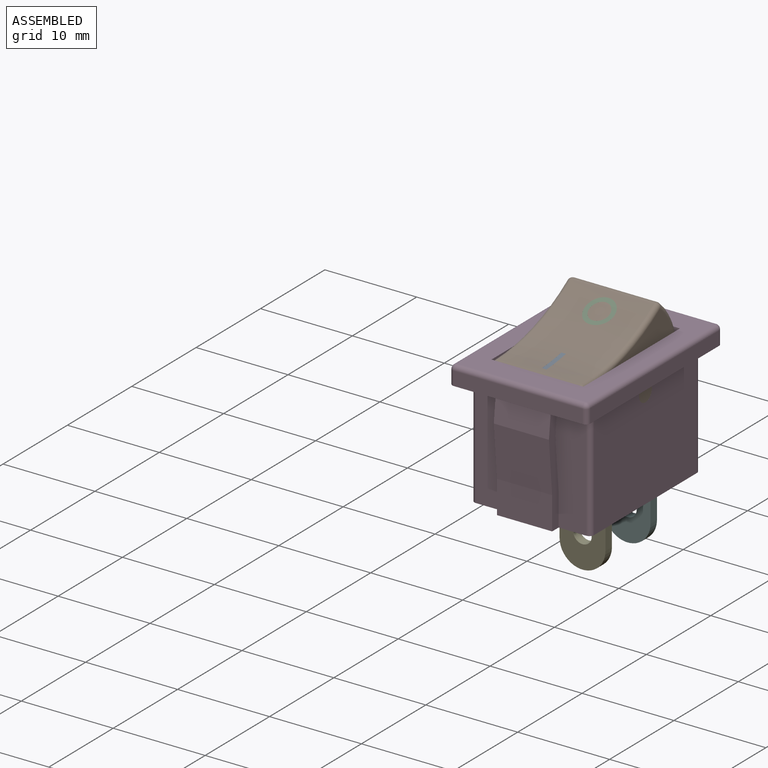
[diagram: assembled view]
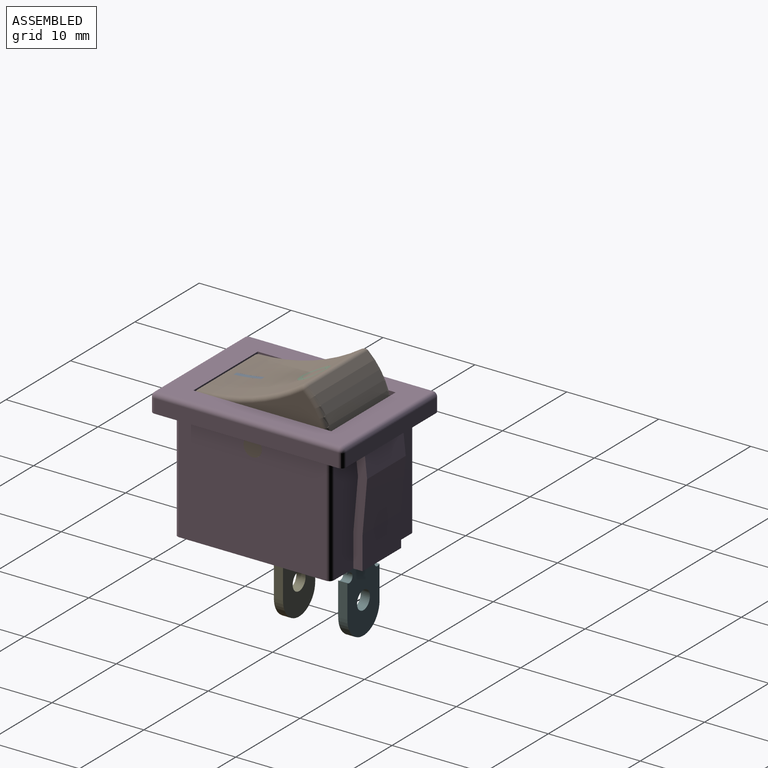
[diagram: assembled view, second angle]
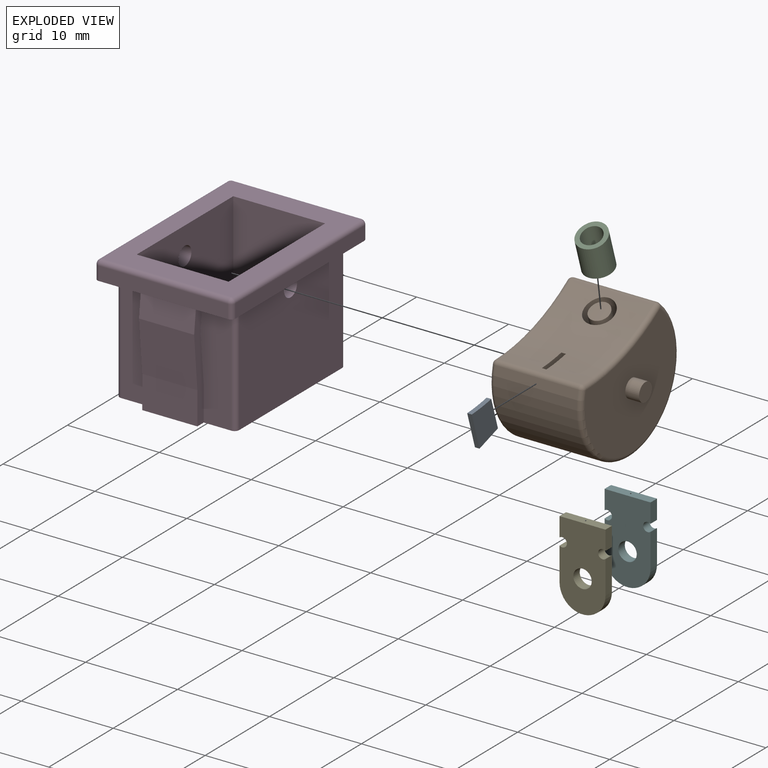
[diagram: exploded view]
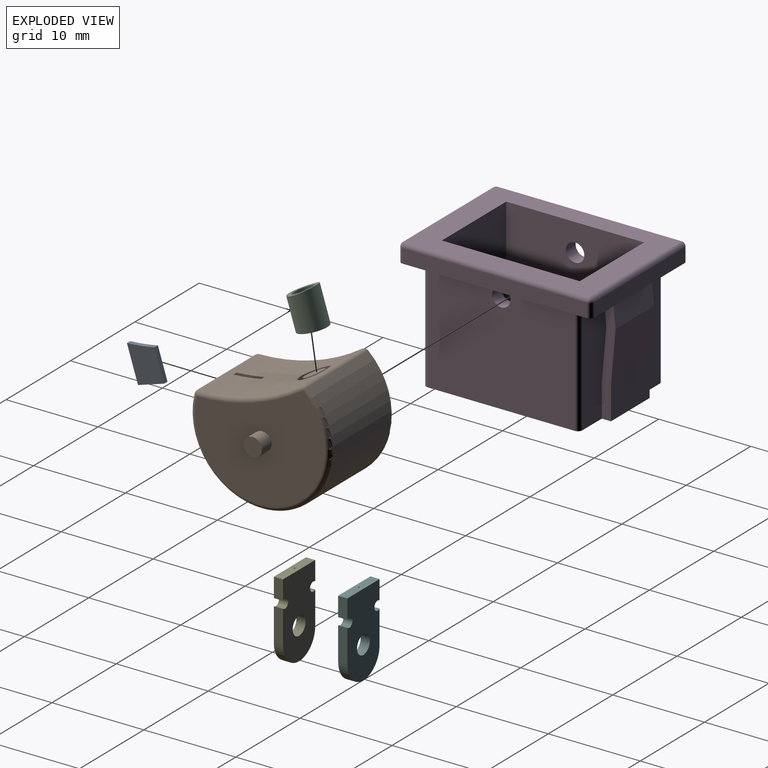
[diagram: exploded view, second angle]
ASSEMBLY  parts=6 mates=5
PART A: 6 faces, bbox 0.5x3x4 mm
  f0: plane 4x0.5mm, normal (0,-1,0), area 2mm2, adj f2,f3,f4,f5
  f1: plane 3.45x0.5mm, normal (0,1,0), area 1.7mm2, adj f2,f3,f4,f5
  f2: plane 4x3mm, normal (-1,0,0), area 11.1mm2, adj f0,f1,f4,f5
  f3: plane 4x3mm, normal (1,0,0), area 11.1mm2, adj f0,f1,f4,f5
  f4: plane 3x0.5mm, normal (0,0,-1), area 1.5mm2, adj f0,f1,f2,f3
  f5: cylinder r=20.77mm len=3mm, axis (-1,0,0), area 1.5mm2, adj f0,f1,f2,f3
PART B: 27 faces, bbox 13x16.4x12.5 mm
  f0: cylinder r=20.77mm len=11.79mm, axis (-1,0,0), area 97.9mm2, adj f4,f8,f9,f13,f19,f22,f23,f24
  f1: cylinder r=7.58mm len=15.16mm, axis (-1,0,0), area 289.3mm2, adj f4,f7,f10,f13
  f2: plane 14.16x10.78mm, normal (1,0,0), area 118.4mm2, adj f7,f8,f16
  f3: plane 14.16x10.78mm, normal (-1,0,0), area 118.4mm2, adj f9,f10,f14
  f4: cylinder r=0.5mm len=9mm, axis (1,0,0), area 5.9mm2, adj f0,f1,f5,f6
  f5: sphere r=0.5mm, area 0.3mm2, adj f4,f7,f8
  f6: sphere r=0.5mm, area 0.3mm2, adj f4,f9,f10
  f7: torus R=7.08mm, axis (1,0,0), area 24.6mm2, adj f1,f2,f5,f11
  f8: torus R=21.27mm, axis (1,0,0), area 9.5mm2, adj f0,f2,f5,f11
  f9: torus R=21.27mm, axis (1,0,0), area 9.5mm2, adj f0,f3,f6,f12
  f10: torus R=7.08mm, axis (1,0,0), area 24.6mm2, adj f1,f3,f6,f12
  f11: sphere r=0.5mm, area 0.3mm2, adj f7,f8,f13
  f12: sphere r=0.5mm, area 0.3mm2, adj f9,f10,f13
  f13: cylinder r=0.5mm len=9mm, axis (1,0,0), area 5.9mm2, adj f0,f1,f11,f12
  f14: cylinder r=1mm len=2mm, axis (1,0,0), area 9.4mm2, adj f3,f15
  f15: plane 2x2mm, normal (-1,0,0), area 3.1mm2, adj f14
  f16: cylinder r=1mm len=2mm, axis (-1,0,0), area 9.4mm2, adj f2,f17
  f17: plane 2x2mm, normal (1,0,0), area 3.1mm2, adj f16
  f18: cylinder r=1.1mm len=3.87mm, axis (0,0,-1), area 25.3mm2, adj f20,f21
  f19: cylinder r=1.6mm len=4mm, axis (0,0,-1), area 37mm2, adj f0,f20
  f20: plane 3.2x3.2mm, normal (0,0,1), area 4.2mm2, adj f18,f19
  f21: cylinder r=20.77mm len=2.2mm, axis (-1,0,0), area 3.9mm2, adj f18
  f22: plane 4x3mm, normal (1,0,0), area 11.1mm2, adj f0,f23,f25,f26
  f23: plane 4x0.5mm, normal (0,1,0), area 2mm2, adj f0,f22,f24,f26
  f24: plane 4x3mm, normal (-1,0,0), area 11.1mm2, adj f0,f23,f25,f26
  f25: plane 3.45x0.5mm, normal (0,-1,0), area 1.7mm2, adj f0,f22,f24,f26
  f26: plane 3x0.5mm, normal (0,0,1), area 1.5mm2, adj f22,f23,f24,f25
PART C: 4 faces, bbox 3.2x3.2x4 mm
  f0: cylinder r=1.1mm len=3.87mm, axis (0,0,-1), area 25.3mm2, adj f2,f3
  f1: cylinder r=1.6mm len=4mm, axis (0,0,-1), area 37mm2, adj f2,f3
  f2: plane 3.2x3.2mm, normal (0,0,-1), area 4.2mm2, adj f0,f1
  f3: cylinder r=20.77mm len=3.2mm, axis (-1,0,0), area 4.3mm2, adj f0,f1
PART D: 58 faces, bbox 15x21x14 mm
  f0: plane 19x13mm, normal (0,0,-1), area 222.8mm2, adj f2,f4,f5,f6,f28,f29,f30,f31
  f1: plane 21x15mm, normal (0,0,-1), area 82mm2, adj f2,f4,f5,f6,f7,f8,f9,f10
  f2: plane 12x12mm, normal (0,1,0), area 122.6mm2, adj f0,f1,f28,f29,f37,f39,f46
  f3: plane 20x14mm, normal (0,0,1), area 130mm2, adj f11,f12,f13,f14,f19,f20,f24,f25
  f4: plane 16x12mm, normal (1,0,0), area 188.9mm2, adj f0,f1,f28,f31,f33
  f5: plane 16x12mm, normal (-1,0,0), area 188.9mm2, adj f0,f1,f29,f30,f32
  f6: plane 12x12mm, normal (0,-1,0), area 122.6mm2, adj f0,f1,f30,f31,f44,f45,f47
  f7: plane 20x1.5mm, normal (1,0,0), area 30mm2, adj f1,f18,f24,f27
  f8: plane 14x1.5mm, normal (0,1,0), area 21mm2, adj f1,f21,f25,f27
  f9: plane 20x1.5mm, normal (-1,0,0), area 30mm2, adj f1,f16,f20,f21
  f10: plane 14x1.5mm, normal (0,-1,0), area 21mm2, adj f1,f16,f18,f19
  f11: plane 15x10mm, normal (-1,0,0), area 146.9mm2, adj f3,f12,f14,f15,f33
  f12: plane 10x10mm, normal (0,-1,0), area 100mm2, adj f3,f11,f13,f15
  f13: plane 15x10mm, normal (1,0,0), area 146.9mm2, adj f3,f12,f14,f15,f32
  f14: plane 10x10mm, normal (0,1,0), area 100mm2, adj f3,f11,f13,f15
  f15: plane 15x10mm, normal (0,0,1), area 150mm2, adj f11,f12,f13,f14
  f16: cylinder r=0.5mm len=1.5mm, axis (0,0,1), area 1.2mm2, adj f1,f9,f10,f17
  f17: sphere r=0.5mm, area 0.4mm2, adj f16,f19,f20
  f18: cylinder r=0.5mm len=1.5mm, axis (0,0,-1), area 1.2mm2, adj f1,f7,f10,f22
  f19: cylinder r=0.5mm len=14mm, axis (-1,0,0), area 11mm2, adj f3,f10,f17,f22
  f20: cylinder r=0.5mm len=20mm, axis (0,1,0), area 15.7mm2, adj f3,f9,f17,f23
  f21: cylinder r=0.5mm len=1.5mm, axis (0,0,-1), area 1.2mm2, adj f1,f8,f9,f23
  f22: sphere r=0.5mm, area 0.4mm2, adj f18,f19,f24
  f23: sphere r=0.5mm, area 0.4mm2, adj f20,f21,f25
  f24: cylinder r=0.5mm len=20mm, axis (0,-1,0), area 15.7mm2, adj f3,f7,f22,f26
  f25: cylinder r=0.5mm len=14mm, axis (1,0,0), area 11mm2, adj f3,f8,f23,f26
  f26: sphere r=0.5mm, area 0.4mm2, adj f24,f25,f27
  f27: cylinder r=0.5mm len=1.5mm, axis (0,0,1), area 1.2mm2, adj f1,f7,f8,f26
  f28: cylinder r=0.5mm len=12mm, axis (0,0,1), area 9.4mm2, adj f0,f1,f2,f4
  f29: cylinder r=0.5mm len=12mm, axis (0,0,-1), area 9.4mm2, adj f0,f1,f2,f5
  f30: cylinder r=0.5mm len=12mm, axis (0,0,1), area 9.4mm2, adj f0,f1,f5,f6
  f31: cylinder r=0.5mm len=12mm, axis (0,0,-1), area 9.4mm2, adj f0,f1,f4,f6
  f32: cylinder r=1mm len=2mm, axis (-1,0,0), area 9.4mm2, adj f5,f13
  f33: cylinder r=1mm len=2mm, axis (-1,0,0), area 9.4mm2, adj f4,f11
  f34: plane 6x5.63mm, normal (0,1,-0.09), area 33.9mm2, adj f35,f38,f39,f46
  f35: plane 6x2.8mm, normal (0,0.99,0.11), area 16.9mm2, adj f1,f34,f39,f46
  f36: plane 6x2.8mm, normal (0,-0.99,-0.11), area 16.9mm2, adj f1,f37,f39,f46
  f37: plane 6x5.63mm, normal (0,-1,0.09), area 33.9mm2, adj f2,f36,f39,f46
  f38: plane 6x3.57mm, normal (0,1,0), area 21.4mm2, adj f0,f34,f39,f46
  f39: plane 12x1.5mm, normal (1,0,0), area 12mm2, adj f0,f1,f2,f34,f35,f36,f37,f38
  f40: plane 6x2.8mm, normal (0,0.99,-0.11), area 16.9mm2, adj f1,f44,f45,f47
  f41: plane 6x2.8mm, normal (0,-0.99,0.11), area 16.9mm2, adj f1,f42,f45,f47
  f42: plane 6x5.63mm, normal (0,-1,-0.09), area 33.9mm2, adj f41,f43,f45,f47
  f43: plane 6x3.57mm, normal (0,-1,0), area 21.4mm2, adj f0,f42,f45,f47
  f44: plane 6x5.63mm, normal (0,1,0.09), area 33.9mm2, adj f6,f40,f45,f47
  f45: plane 12x1.5mm, normal (1,0,0), area 12mm2, adj f0,f1,f6,f40,f41,f42,f43,f44
  f46: plane 12x1.5mm, normal (-1,0,0), area 12mm2, adj f0,f1,f2,f34,f35,f36,f37,f38
  f47: plane 12x1.5mm, normal (-1,0,0), area 12mm2, adj f0,f1,f6,f40,f41,f42,f43,f44
  f48: plane 5x1mm, normal (0,-1,0), area 5mm2, adj f0,f49,f51,f52
  f49: plane 1x1mm, normal (-1,0,0), area 1mm2, adj f0,f48,f50,f52
  f50: plane 5x1mm, normal (0,1,0), area 5mm2, adj f0,f49,f51,f52
  f51: plane 1x1mm, normal (1,0,0), area 1mm2, adj f0,f48,f50,f52
  f52: plane 5x1mm, normal (0,0,-1), area 5mm2, adj f48,f49,f50,f51
  f53: plane 5x1mm, normal (0,-1,0), area 5mm2, adj f0,f54,f56,f57
  f54: plane 1x1mm, normal (-1,0,0), area 1mm2, adj f0,f53,f55,f57
  f55: plane 5x1mm, normal (0,1,0), area 5mm2, adj f0,f54,f56,f57
  f56: plane 1x1mm, normal (1,0,0), area 1mm2, adj f0,f53,f55,f57
  f57: plane 5x1mm, normal (0,0,-1), area 5mm2, adj f53,f54,f55,f56
PART E: 11 faces, bbox 5x1x9 mm
  f0: plane 9x5mm, normal (0,1,0), area 37.8mm2, adj f1,f2,f4,f5,f6,f7,f8,f9
  f1: plane 2.1x1mm, normal (1,0,0), area 2.1mm2, adj f0,f3,f6,f9
  f2: plane 3.6x1mm, normal (1,0,0), area 3.6mm2, adj f0,f3,f7,f9
  f3: plane 9x5mm, normal (0,-1,0), area 37.8mm2, adj f1,f2,f4,f5,f6,f7,f8,f9
  f4: plane 2.1x1mm, normal (-1,0,0), area 2.1mm2, adj f0,f3,f6,f8
  f5: plane 3.6x1mm, normal (-1,0,0), area 3.6mm2, adj f0,f3,f7,f8
  f6: plane 5x1mm, normal (0,0,1), area 5mm2, adj f0,f1,f3,f4
  f7: cylinder r=2.5mm len=5mm, axis (0,-1,0), area 7.9mm2, adj f0,f2,f3,f5
  f8: cylinder r=0.5mm len=1mm, axis (0,1,0), area 2.2mm2, adj f0,f3,f4,f5
  f9: cylinder r=0.5mm len=1mm, axis (0,1,0), area 2.2mm2, adj f0,f1,f2,f3
  f10: cylinder r=1mm len=2mm, axis (0,1,0), area 6.3mm2, adj f0,f3
PART F: 11 faces, bbox 5x1x9 mm
  f0: plane 9x5mm, normal (0,1,0), area 37.8mm2, adj f1,f2,f4,f5,f6,f7,f8,f9
  f1: plane 2.1x1mm, normal (1,0,0), area 2.1mm2, adj f0,f3,f6,f9
  f2: plane 3.6x1mm, normal (1,0,0), area 3.6mm2, adj f0,f3,f7,f9
  f3: plane 9x5mm, normal (0,-1,0), area 37.8mm2, adj f1,f2,f4,f5,f6,f7,f8,f9
  f4: plane 2.1x1mm, normal (-1,0,0), area 2.1mm2, adj f0,f3,f6,f8
  f5: plane 3.6x1mm, normal (-1,0,0), area 3.6mm2, adj f0,f3,f7,f8
  f6: plane 5x1mm, normal (0,0,1), area 5mm2, adj f0,f1,f3,f4
  f7: cylinder r=2.5mm len=5mm, axis (0,-1,0), area 7.9mm2, adj f0,f2,f3,f5
  f8: cylinder r=0.5mm len=1mm, axis (0,1,0), area 2.2mm2, adj f0,f3,f4,f5
  f9: cylinder r=0.5mm len=1mm, axis (0,1,0), area 2.2mm2, adj f0,f1,f2,f3
  f10: cylinder r=1mm len=2mm, axis (0,1,0), area 6.3mm2, adj f0,f3
PLACE A rot(axis=(1,0,0),17.5deg) t=(-13.84,-107.05,11.1)mm
PLACE B rot(axis=(1,0,0),17.5deg) t=(-13.84,-107.05,11.1)mm
PLACE C rot(axis=(1,0,0),17.5deg) t=(-13.84,-107.05,11.1)mm
PLACE D t=(-8.84,-106.8,-0.69)mm
PLACE E t=(-8.84,-113.8,0.31)mm
PLACE F t=(-8.84,-99.8,0.31)mm
MATE revolute B.f14 <-> D.f32  axis (1,0,0) through (-2.34,-106.8,10.31)mm
MATE fastened B.f26 <-> A.f4  axis (0,-0.3,0.95) through (-8.84,-110.62,9.97)mm
MATE fastened E.f6 <-> D.f57  axis (0,0,1) through (-8.84,-106.8,0.31)mm
MATE fastened D.f52 <-> F.f6  axis (0,0,-1) through (-8.84,-99.8,0.31)mm
MATE fastened B.f18 <-> C.f0  axis (0,-0.3,0.95) through (-8.84,-103.56,12.2)mm
